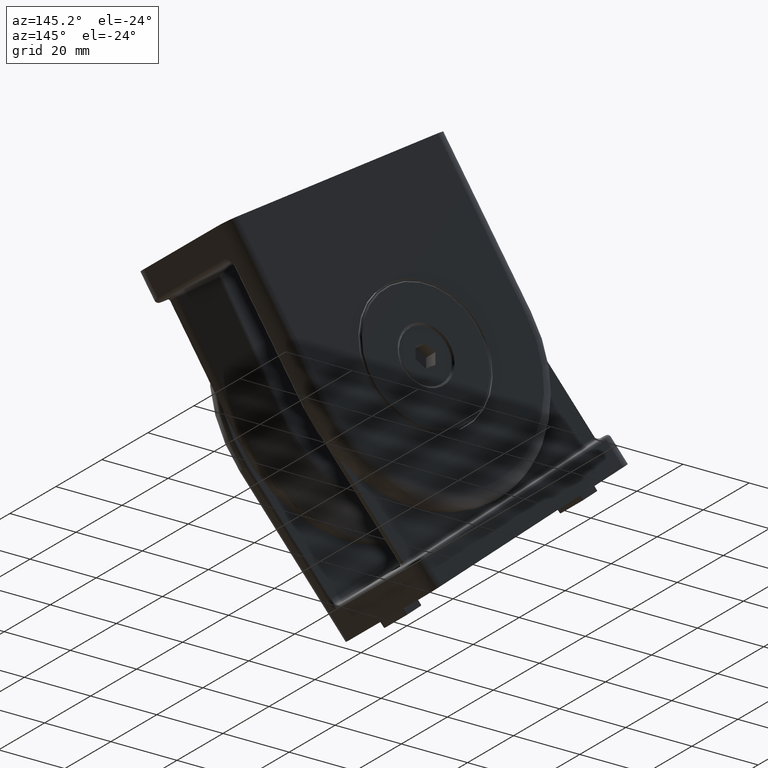
[diagram: clean part render]
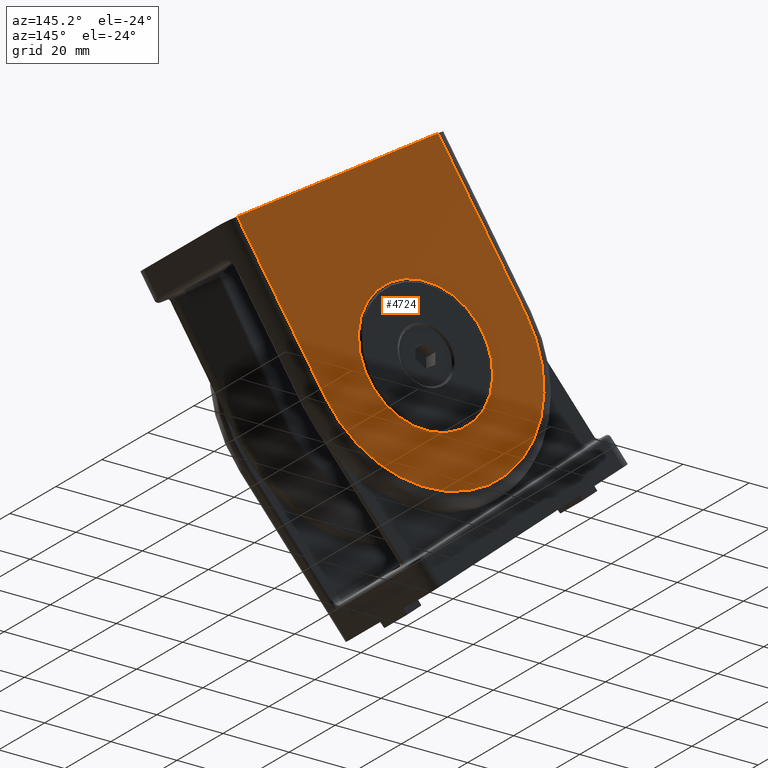
[diagram: same view with one face highlighted and labeled with its STEP entity id]
A machine part, auxiliary view. The second image highlights one B-rep face of the part: STEP entity #4724.
In plain terms, the highlighted planar face has unit normal (-0, -1, -0).
Its self-contained STEP definition (entity closure, byte-faithful):
#189=PLANE('',#5209);
#384=LINE('',#8332,#689);
#385=LINE('',#8335,#690);
#389=LINE('',#8351,#694);
#689=VECTOR('',#6151,50.);
#690=VECTOR('',#6154,71.6);
#694=VECTOR('',#6174,50.);
#1103=FACE_BOUND('',#1619,.T.);
#1254=FACE_OUTER_BOUND('',#1618,.T.);
#1618=EDGE_LOOP('',(#3773,#3774,#3775,#3776));
#1619=EDGE_LOOP('',(#3777));
#1882=CIRCLE('',#5039,35.8);
#1901=CIRCLE('',#5069,20.3187216588148);
#2181=VERTEX_POINT('',#7486);
#2182=VERTEX_POINT('',#7488);
#2209=VERTEX_POINT('',#7951);
#2326=VERTEX_POINT('',#8330);
#2327=VERTEX_POINT('',#8334);
#2635=EDGE_CURVE('',#2181,#2182,#1882,.T.);
#2664=EDGE_CURVE('',#2209,#2209,#1901,.T.);
#2814=EDGE_CURVE('',#2326,#2181,#384,.T.);
#2815=EDGE_CURVE('',#2327,#2326,#385,.T.);
#2824=EDGE_CURVE('',#2182,#2327,#389,.T.);
#3773=ORIENTED_EDGE('',*,*,#2814,.F.);
#3774=ORIENTED_EDGE('',*,*,#2815,.F.);
#3775=ORIENTED_EDGE('',*,*,#2824,.F.);
#3776=ORIENTED_EDGE('',*,*,#2635,.F.);
#3777=ORIENTED_EDGE('',*,*,#2664,.F.);
#4724=ADVANCED_FACE('',(#1254,#1103),#189,.F.);
#5039=AXIS2_PLACEMENT_3D('',#7489,#5803,#5804);
#5069=AXIS2_PLACEMENT_3D('',#7952,#5865,#5866);
#5209=AXIS2_PLACEMENT_3D('',#8543,#6256,#6257);
#5803=DIRECTION('center_axis',(-2.55619259065697E-16,-1.,1.93595626405074E-16));
#5804=DIRECTION('ref_axis',(1.,-2.48094530642493E-16,-2.48094530642493E-16));
#5865=DIRECTION('center_axis',(0.,1.,0.));
#5866=DIRECTION('ref_axis',(0.,0.,1.));
#6151=DIRECTION('',(0.,0.,-1.));
#6154=DIRECTION('',(-1.,0.,0.));
#6174=DIRECTION('',(0.,0.,1.));
#6256=DIRECTION('center_axis',(0.,-1.,0.));
#6257=DIRECTION('ref_axis',(0.,0.,-1.));
#7486=CARTESIAN_POINT('',(-35.8,19.9,-41.));
#7488=CARTESIAN_POINT('',(35.8,19.9,-41.));
#7489=CARTESIAN_POINT('Origin',(-2.01697007538405E-14,19.9,-41.));
#7951=CARTESIAN_POINT('',(5.02088605067175E-15,19.9,-20.6812783411852));
#7952=CARTESIAN_POINT('Origin',(5.02088605067175E-15,19.9,-41.));
#8330=CARTESIAN_POINT('',(-35.8,19.9,9.));
#8332=CARTESIAN_POINT('',(-35.8,19.9,0.));
#8334=CARTESIAN_POINT('',(35.8,19.9,9.));
#8335=CARTESIAN_POINT('',(-45.5,19.9,9.));
#8351=CARTESIAN_POINT('',(35.8,19.9,0.));
#8543=CARTESIAN_POINT('Origin',(39.8,19.9,0.));